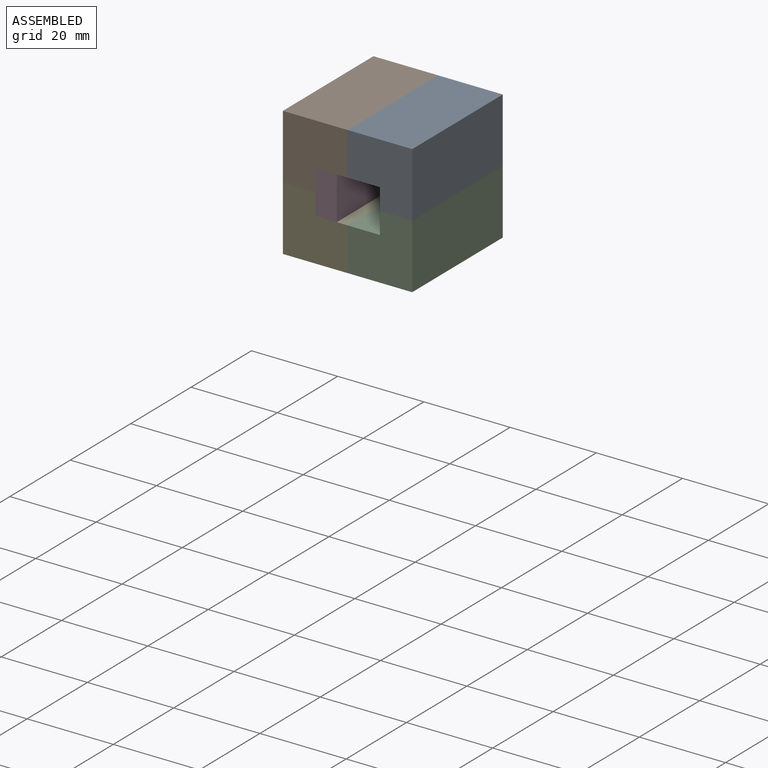
[diagram: assembled view]
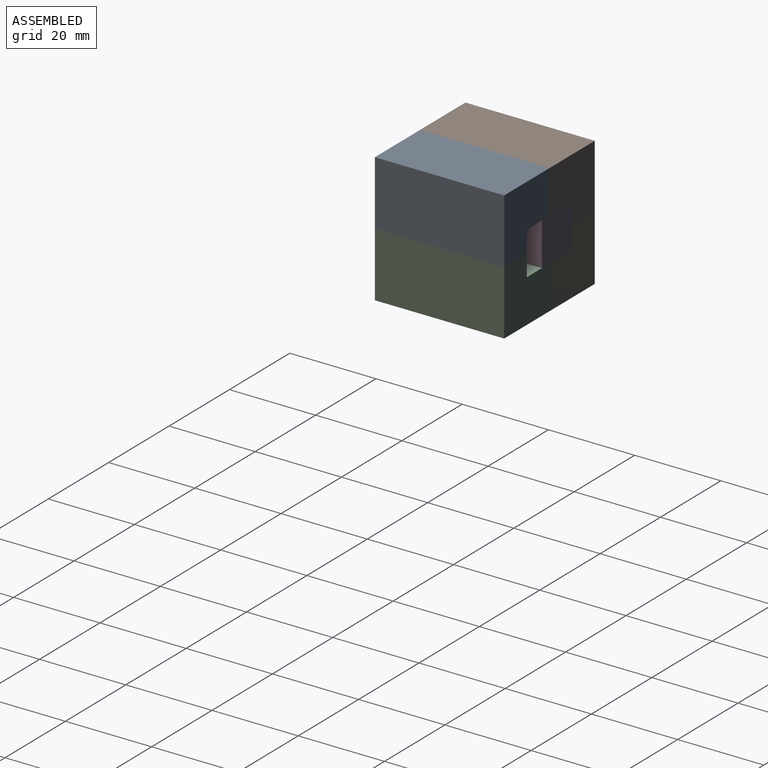
[diagram: assembled view, second angle]
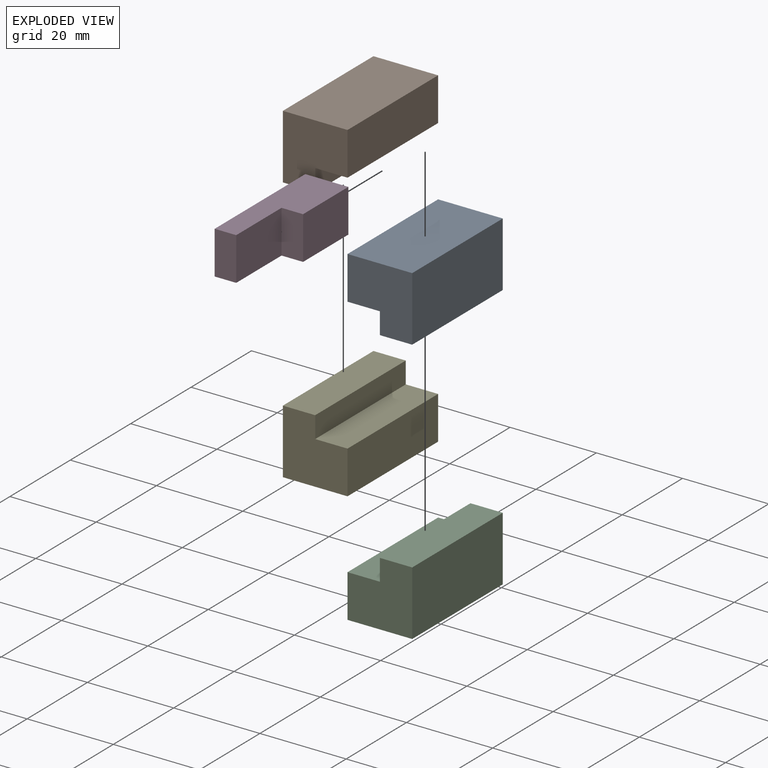
[diagram: exploded view]
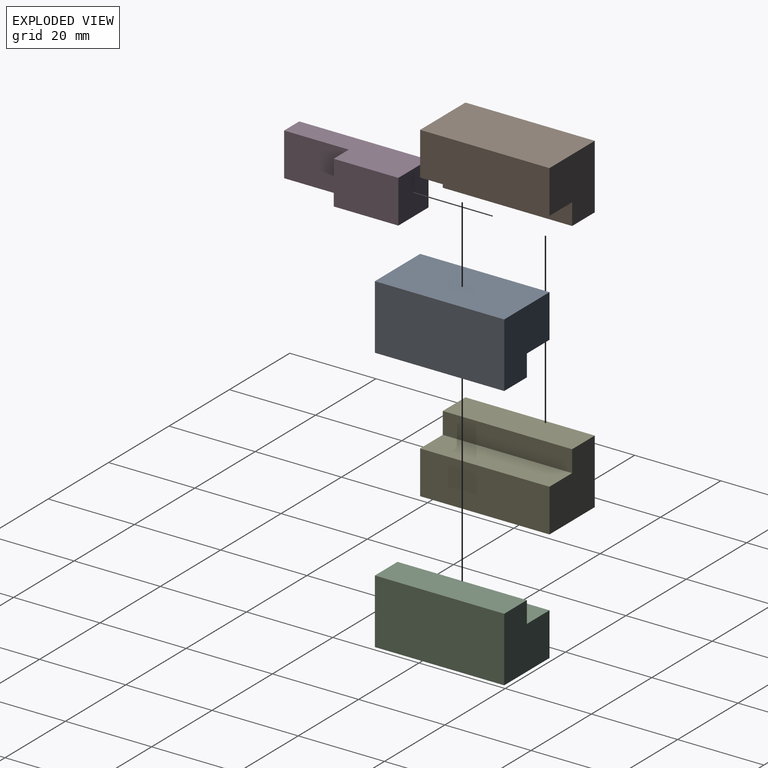
[diagram: exploded view, second angle]
ASSEMBLY  parts=5 mates=3
PART A: 8 faces, bbox 15x30x15 mm
  f0: plane 30x15mm, normal (0,0,1), area 450mm2, adj f1,f2,f3,f5
  f1: plane 15x15mm, normal (0,-1,0), area 187.5mm2, adj f0,f3,f4,f5,f6,f7
  f2: plane 15x15mm, normal (0,1,0), area 187.5mm2, adj f0,f3,f4,f5,f6,f7
  f3: plane 30x15mm, normal (1,0,0), area 450mm2, adj f0,f1,f2,f4
  f4: plane 30x7.5mm, normal (0,0,-1), area 225mm2, adj f1,f2,f3,f6
  f5: plane 30x10mm, normal (-1,0,0), area 300mm2, adj f0,f1,f2,f7
  f6: plane 30x5mm, normal (-1,0,0), area 150mm2, adj f1,f2,f4,f7
  f7: plane 30x7.5mm, normal (0,0,-1), area 225mm2, adj f1,f2,f5,f6
PART B: 8 faces, bbox 15x30x15 mm
  f0: plane 30x15mm, normal (0,0,1), area 450mm2, adj f1,f2,f3,f6
  f1: plane 30x15mm, normal (-1,0,0), area 450mm2, adj f0,f2,f3,f5
  f2: plane 15x15mm, normal (0,-1,0), area 187.5mm2, adj f0,f1,f4,f5,f6,f7
  f3: plane 15x15mm, normal (0,1,0), area 187.5mm2, adj f0,f1,f4,f5,f6,f7
  f4: plane 30x5mm, normal (1,0,0), area 150mm2, adj f2,f3,f5,f7
  f5: plane 30x7.5mm, normal (0,0,-1), area 225mm2, adj f1,f2,f3,f4
  f6: plane 30x10mm, normal (1,0,0), area 300mm2, adj f0,f2,f3,f7
  f7: plane 30x7.5mm, normal (0,0,-1), area 225mm2, adj f2,f3,f4,f6
PART C: 8 faces, bbox 15x30x15 mm
  f0: plane 30x15mm, normal (1,0,0), area 450mm2, adj f2,f3,f4,f7
  f1: plane 30x5mm, normal (-1,0,0), area 150mm2, adj f3,f4,f6,f7
  f2: plane 30x15mm, normal (0,0,-1), area 450mm2, adj f0,f3,f4,f5
  f3: plane 15x15mm, normal (0,-1,0), area 187.5mm2, adj f0,f1,f2,f5,f6,f7
  f4: plane 15x15mm, normal (0,1,0), area 187.5mm2, adj f0,f1,f2,f5,f6,f7
  f5: plane 30x10mm, normal (-1,0,0), area 300mm2, adj f2,f3,f4,f6
  f6: plane 30x7.5mm, normal (0,0,1), area 225mm2, adj f1,f3,f4,f5
  f7: plane 30x7.5mm, normal (0,0,1), area 225mm2, adj f0,f1,f3,f4
PART D: 8 faces, bbox 10x30x10 mm
  f0: plane 10x5mm, normal (0,-1,0), area 50mm2, adj f2,f3,f4,f7
  f1: plane 10x10mm, normal (0,1,0), area 100mm2, adj f2,f3,f4,f5
  f2: plane 30x10mm, normal (0,0,-1), area 225mm2, adj f0,f1,f3,f5,f6,f7
  f3: plane 30x10mm, normal (-1,0,0), area 300mm2, adj f0,f1,f2,f4
  f4: plane 30x10mm, normal (0,0,1), area 225mm2, adj f0,f1,f3,f5,f6,f7
  f5: plane 15x10mm, normal (1,0,0), area 150mm2, adj f1,f2,f4,f6
  f6: plane 10x5mm, normal (0,-1,0), area 50mm2, adj f2,f4,f5,f7
  f7: plane 15x10mm, normal (1,0,0), area 150mm2, adj f0,f2,f4,f6
PART E: 118 faces, bbox 15x30x15 mm
  f0: plane 30x15mm, normal (-1,0,0), area 378.6mm2, adj f1,f3,f4,f7,f8,f9,f10,f11
  f1: plane 15x15mm, normal (0,-1,0), area 187.5mm2, adj f0,f2,f4,f5,f6,f7
  f2: plane 30x5mm, normal (1,0,0), area 150mm2, adj f1,f3,f6,f7
  f3: plane 15x15mm, normal (0,1,0), area 187.5mm2, adj f0,f2,f4,f5,f6,f7
  f4: plane 30x15mm, normal (0,0,-1), area 450mm2, adj f0,f1,f3,f5
  f5: plane 30x10mm, normal (1,0,0), area 300mm2, adj f1,f3,f4,f6
  f6: plane 30x7.5mm, normal (0,0,1), area 225mm2, adj f1,f2,f3,f5
  f7: plane 30x7.5mm, normal (0,0,1), area 225mm2, adj f0,f1,f2,f3
  f8: plane 2.56x1.36mm, normal (0,-0.88,-0.47), area 2.9mm2, adj f0,f9,f16,f17
  f9: plane 2.56x1.35mm, normal (0,0.88,-0.47), area 2.9mm2, adj f0,f8,f10,f17
  f10: plane 1x0.65mm, normal (0,0,-1), area 0.7mm2, adj f0,f9,f11,f17
  f11: plane 3.16x1.7mm, normal (0,-0.88,0.47), area 3.6mm2, adj f0,f10,f12,f17
  f12: plane 1.96x1mm, normal (0,-1,0), area 2mm2, adj f0,f11,f13,f17
  f13: plane 1x0.6mm, normal (0,0,1), area 0.6mm2, adj f0,f12,f14,f17
  f14: plane 1.98x1mm, normal (0,1,0), area 2mm2, adj f0,f13,f15,f17
  f15: plane 3.13x1.71mm, normal (0,0.88,0.48), area 3.6mm2, adj f0,f14,f16,f17
  f16: plane 1x0.64mm, normal (0,0,-1), area 0.6mm2, adj f0,f8,f15,f17
  f17: plane 5.11x4.01mm, normal (-1,0,0), area 5mm2, adj f8,f9,f10,f11,f12,f13,f14,f15
  f18: plane 1.91x1mm, normal (0,1,0), area 1.9mm2, adj f19,f42,f43,f114
  f19: plane 1.02x1mm, normal (0,0,1), area 1mm2, adj f18,f20,f43,f114
  f20: extruded ~1x0.97mm, area 1mm2, adj f19,f21,f43,f114
  f21: extruded ~1x0.7mm, area 0.8mm2, adj f20,f22,f43,f114
  f22: extruded ~1x0.75mm, area 0.8mm2, adj f21,f23,f43,f114
  f23: extruded ~1x0.93mm, area 1mm2, adj f22,f42,f43,f114
  f24: plane 1x0.98mm, normal (0,0,-1), area 1mm2, adj f25,f40,f43,f44
  f25: plane 1.67x1mm, normal (0,1,0), area 1.7mm2, adj f24,f26,f43,f44
  f26: plane 1x0.88mm, normal (0,0,1), area 0.9mm2, adj f25,f27,f43,f44
  f27: extruded ~1x0.98mm, area 1mm2, adj f26,f28,f43,f44
  f28: extruded ~1x0.62mm, area 0.7mm2, adj f27,f29,f43,f44
  f29: extruded ~1x0.67mm, area 0.8mm2, adj f28,f40,f43,f44
  f30: plane 1.45x1mm, normal (0,0,-1), area 1.4mm2, adj f0,f31,f41,f43
  f31: plane 5.11x1mm, normal (0,-1,0), area 5.1mm2, adj f0,f30,f32,f43
  f32: plane 1.78x1mm, normal (0,0,1), area 1.8mm2, adj f0,f31,f33,f43
  f33: extruded ~1.3x1mm, area 1.4mm2, adj f0,f32,f34,f43
  f34: extruded ~1.07x1mm, area 1.2mm2, adj f0,f33,f35,f43
  f35: extruded ~1.22x1.17mm, area 1.9mm2, adj f0,f34,f36,f43
  f36: plane 1x0.03mm, normal (0,1,0), area 0mm2, adj f0,f35,f37,f43
  f37: extruded ~1x0.74mm, area 0.9mm2, adj f0,f36,f38,f43
  f38: extruded ~1x0.75mm, area 0.8mm2, adj f0,f37,f39,f43
  f39: extruded ~1x0.96mm, area 1.1mm2, adj f0,f38,f41,f43
  f40: extruded ~1x0.91mm, area 0.9mm2, adj f24,f29,f43,f44
  f41: extruded ~1.47x1mm, area 1.5mm2, adj f0,f30,f39,f43
  f42: plane 1.07x1mm, normal (0,0,-1), area 1.1mm2, adj f18,f23,f43,f114
  f43: plane 5.11x3.54mm, normal (-1,0,0), area 8.9mm2, adj f18,f19,f20,f21,f22,f23,f24,f25
  f44: plane 2.16x1.67mm, normal (-1,0,0), area 3.3mm2, adj f24,f25,f26,f27,f28,f29,f40
  f45: extruded ~1.51x1mm, area 1.6mm2, adj f46,f58,f59,f115
  f46: extruded ~1.55x1mm, area 1.7mm2, adj f45,f47,f59,f115
  f47: extruded ~1.6x1mm, area 1.7mm2, adj f46,f48,f59,f115
  f48: plane 1x0.72mm, normal (0,0,-1), area 0.7mm2, adj f47,f49,f59,f115
  f49: plane 4.09x1mm, normal (0,1,0), area 4.1mm2, adj f48,f50,f59,f115
  f50: plane 1x0.86mm, normal (0,0,1), area 0.9mm2, adj f49,f58,f59,f115
  f51: extruded ~1.94x1mm, area 2.1mm2, adj f0,f52,f57,f59
  f52: extruded ~1.85x1mm, area 2mm2, adj f0,f51,f53,f59
  f53: extruded ~1.85x1mm, area 2mm2, adj f0,f52,f54,f59
  f54: plane 1.57x1mm, normal (0,0,-1), area 1.6mm2, adj f0,f53,f55,f59
  f55: plane 5.11x1mm, normal (0,-1,0), area 5.1mm2, adj f0,f54,f56,f59
  f56: plane 1.42x1mm, normal (0,0,1), area 1.4mm2, adj f0,f55,f57,f59
  f57: extruded ~1.98x1mm, area 2.1mm2, adj f0,f51,f56,f59
  f58: extruded ~1.49x1mm, area 1.6mm2, adj f45,f50,f59,f115
  f59: plane 5.11x4.08mm, normal (-1,0,0), area 8.3mm2, adj f45,f46,f47,f48,f49,f50,f51,f52
  f60: plane 1.59x1mm, normal (0,-0.94,0.35), area 1.7mm2, adj f61,f72,f73,f116
  f61: plane 1.65x1mm, normal (0,0,-1), area 1.7mm2, adj f60,f62,f73,f116
  f62: plane 1.59x1mm, normal (0,0.94,0.35), area 1.7mm2, adj f61,f63,f73,f116
  f63: extruded ~1x0.74mm, area 0.8mm2, adj f62,f72,f73,f116
  f64: plane 1.63x1mm, normal (0,-0.93,0.36), area 1.7mm2, adj f0,f65,f71,f73
  f65: plane 1x0.62mm, normal (0,0,1), area 0.6mm2, adj f0,f64,f66,f73
  f66: plane 5.14x2.01mm, normal (0,0.93,-0.36), area 5.5mm2, adj f0,f65,f67,f73
  f67: plane 1x0.5mm, normal (0,0,-1), area 0.5mm2, adj f0,f66,f68,f73
  f68: plane 5.14x2.02mm, normal (0,-0.93,-0.37), area 5.5mm2, adj f0,f67,f69,f73
  f69: plane 1x0.6mm, normal (0,0,1), area 0.6mm2, adj f0,f68,f70,f73
  f70: plane 1.63x1mm, normal (0,0.93,0.36), area 1.7mm2, adj f0,f69,f71,f73
  f71: plane 2.05x1mm, normal (0,0,1), area 2mm2, adj f0,f64,f70,f73
  f72: extruded ~1x0.74mm, area 0.8mm2, adj f60,f63,f73,f116
  f73: plane 5.14x4.53mm, normal (-1,0,0), area 6.7mm2, adj f60,f61,f62,f63,f64,f65,f66,f67
  f74: plane 1x0.82mm, normal (0,0,-1), area 0.8mm2, adj f75,f91,f92,f117
  f75: plane 1.96x1mm, normal (0,1,0), area 2mm2, adj f74,f76,f92,f117
  f76: plane 1x0.77mm, normal (0,0,1), area 0.8mm2, adj f75,f77,f92,f117
  f77: extruded ~1x0.96mm, area 1mm2, adj f76,f78,f92,f117
  f78: extruded ~1x0.73mm, area 0.8mm2, adj f77,f79,f92,f117
  f79: extruded ~1x0.75mm, area 0.8mm2, adj f78,f91,f92,f117
  f80: plane 2.13x1mm, normal (0,1,0), area 2.1mm2, adj f0,f81,f90,f92
  f81: plane 1.07x1mm, normal (0,0,1), area 1.1mm2, adj f0,f80,f82,f92
  f82: plane 2.13x1.24mm, normal (0,-0.86,0.5), area 2.5mm2, adj f0,f81,f83,f92
  f83: plane 1x0.7mm, normal (0,0,1), area 0.7mm2, adj f0,f82,f84,f92
  f84: plane 2.3x1.39mm, normal (0,0.86,-0.52), area 2.7mm2, adj f0,f83,f85,f92
  f85: extruded ~1.37x1.03mm, area 1.8mm2, adj f0,f84,f86,f92
  f86: extruded ~1.08x1mm, area 1.2mm2, adj f0,f85,f87,f92
  f87: extruded ~1.39x1mm, area 1.5mm2, adj f0,f86,f88,f92
  f88: plane 1.4x1mm, normal (0,0,-1), area 1.4mm2, adj f0,f87,f89,f92
  f89: plane 5.11x1mm, normal (0,-1,0), area 5.1mm2, adj f0,f88,f90,f92
  f90: plane 1x0.59mm, normal (0,0,1), area 0.6mm2, adj f0,f80,f89,f92
  f91: extruded ~1x0.92mm, area 1mm2, adj f74,f79,f92,f117
  f92: plane 5.11x3.6mm, normal (-1,0,0), area 7.8mm2, adj f74,f75,f76,f77,f78,f79,f80,f81
  f93: plane 1x0.68mm, normal (0,0,1), area 0.7mm2, adj f0,f94,f107,f108
  f94: plane 5.11x1mm, normal (0,1,0), area 5.1mm2, adj f0,f93,f95,f108
  f95: plane 1x0.56mm, normal (0,0,-1), area 0.6mm2, adj f0,f94,f96,f108
  f96: plane 2.94x1mm, normal (0,-1,0), area 2.9mm2, adj f0,f95,f97,f108
  f97: extruded ~1x0.73mm, area 0.7mm2, adj f0,f96,f98,f108
  f98: extruded ~1x0.61mm, area 0.6mm2, adj f0,f97,f99,f108
  f99: plane 1x0.03mm, normal (0,0,-1), area 0mm2, adj f0,f98,f100,f108
  f100: plane 4.28x2.79mm, normal (0,0.84,-0.55), area 5.1mm2, adj f0,f99,f101,f108
  f101: plane 1x0.67mm, normal (0,0,-1), area 0.7mm2, adj f0,f100,f102,f108
  f102: plane 5.11x1mm, normal (0,-1,0), area 5.1mm2, adj f0,f101,f103,f108
  f103: plane 1x0.55mm, normal (0,0,1), area 0.5mm2, adj f0,f102,f104,f108
  f104: plane 2.91x1mm, normal (0,1,0), area 2.9mm2, adj f0,f103,f105,f108
  f105: extruded ~1.38x1mm, area 1.4mm2, adj f0,f104,f106,f108
  f106: plane 1x0.03mm, normal (0,0,1), area 0mm2, adj f0,f105,f107,f108
  f107: plane 4.29x2.8mm, normal (0,-0.84,0.55), area 5.1mm2, adj f0,f93,f106,f108
  f108: plane 5.11x4mm, normal (-1,0,0), area 8.6mm2, adj f93,f94,f95,f96,f97,f98,f99,f100
  f109: plane 5.11x1mm, normal (0,-1,0), area 5.1mm2, adj f0,f110,f112,f113
  f110: plane 1x0.59mm, normal (0,0,1), area 0.6mm2, adj f0,f109,f111,f113
  f111: plane 5.11x1mm, normal (0,1,0), area 5.1mm2, adj f0,f110,f112,f113
  f112: plane 1x0.59mm, normal (0,0,-1), area 0.6mm2, adj f0,f109,f111,f113
  f113: plane 5.11x0.59mm, normal (-1,0,0), area 3mm2, adj f109,f110,f111,f112
  f114: plane 2.31x1.91mm, normal (-1,0,0), area 4mm2, adj f18,f19,f20,f21,f22,f23,f42
  f115: plane 4.09x2.86mm, normal (-1,0,0), area 10.3mm2, adj f45,f46,f47,f48,f49,f50,f58
  f116: plane 2.32x1.65mm, normal (-1,0,0), area 1.8mm2, adj f60,f61,f62,f63,f72
  f117: plane 2.03x1.96mm, normal (-1,0,0), area 3.6mm2, adj f74,f75,f76,f77,f78,f79,f91
PLACE A at identity
PLACE B at identity
PLACE C t=(-21.62,0,10.5)mm
PLACE D t=(-19.68,0,3.17)mm
PLACE E t=(10.37,0,-7.03)mm
MATE parallel C.f7 <-> A.f4  axis (0,0,1) through (-23.43,-15,25.5)mm
MATE parallel E.f7 <-> B.f5  axis (0,0,1) through (-45.93,-15,25.5)mm
MATE parallel D.f0 <-> E.f1  axis (0,-1,0) through (-42.18,-30,25.5)mm
